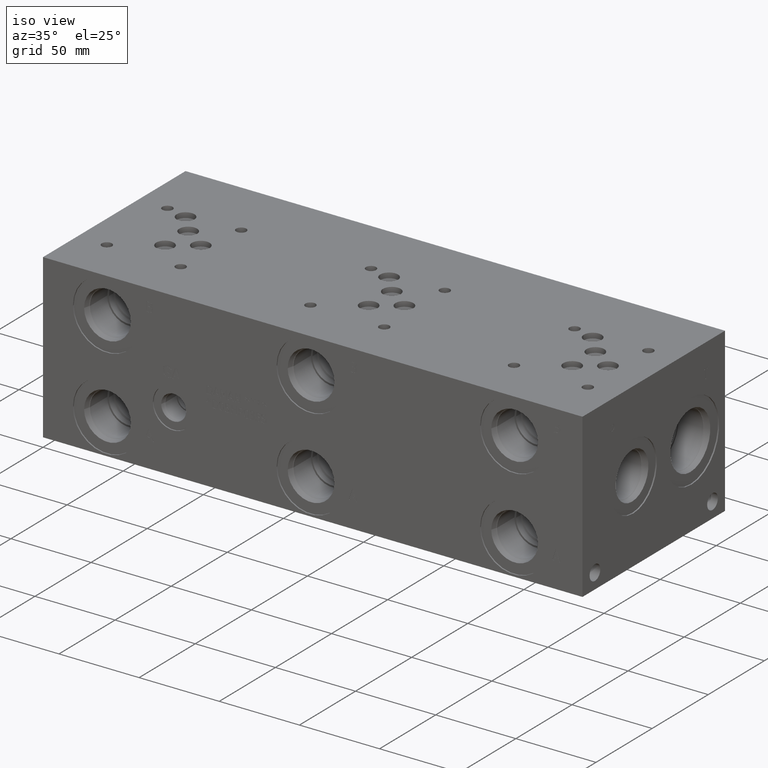
[diagram: clean part render]
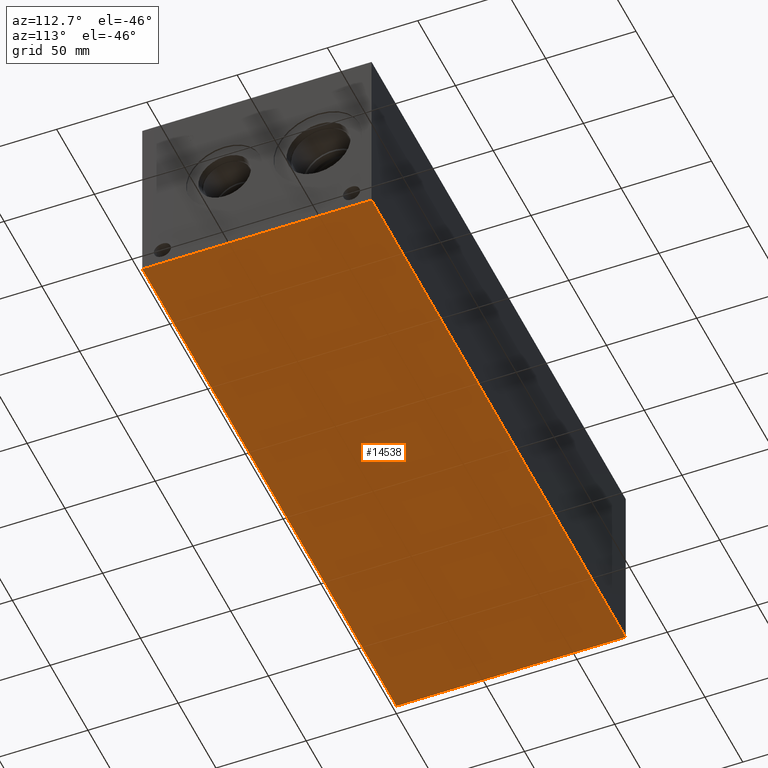
[diagram: tour spotlight — one face highlighted and labeled with its STEP entity id]
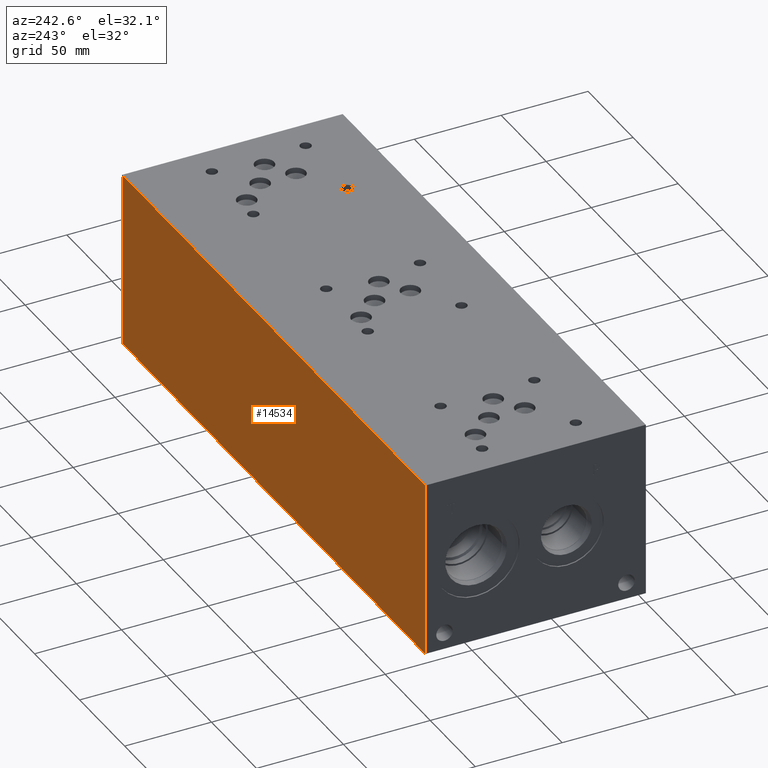
[diagram: tour spotlight — one face highlighted and labeled with its STEP entity id]
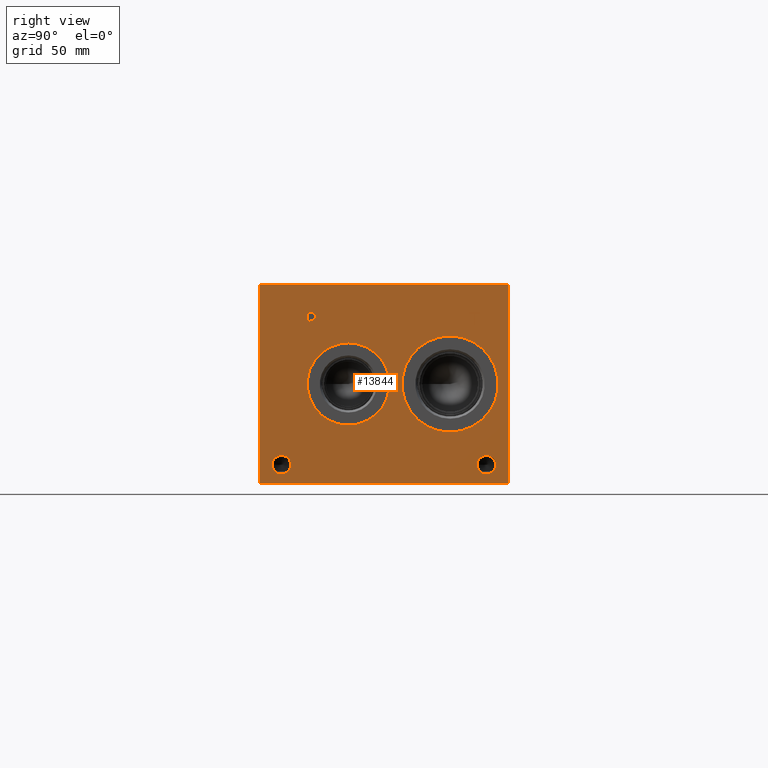
[diagram: tour spotlight — one face highlighted and labeled with its STEP entity id]
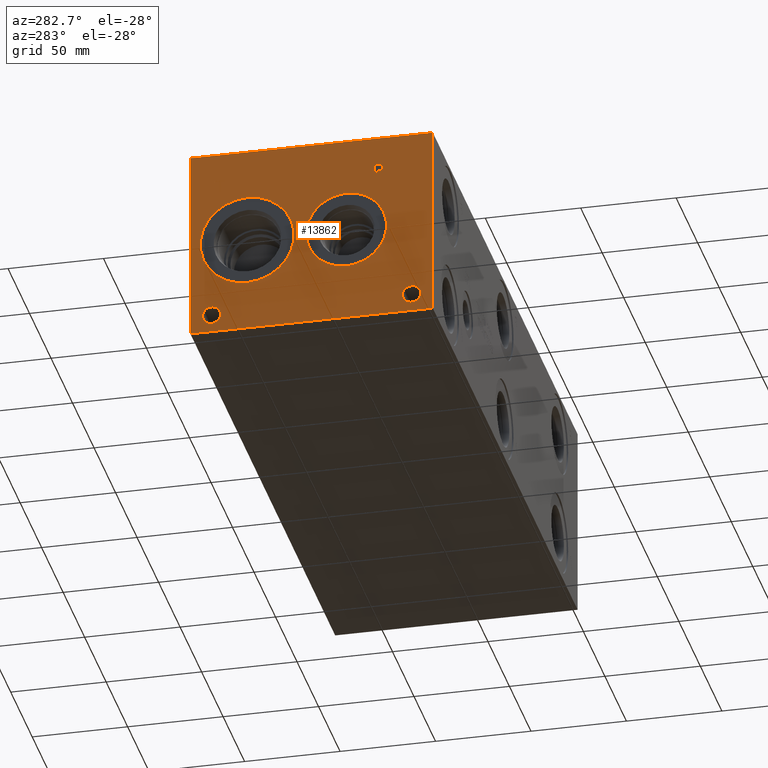
[diagram: tour spotlight — one face highlighted and labeled with its STEP entity id]
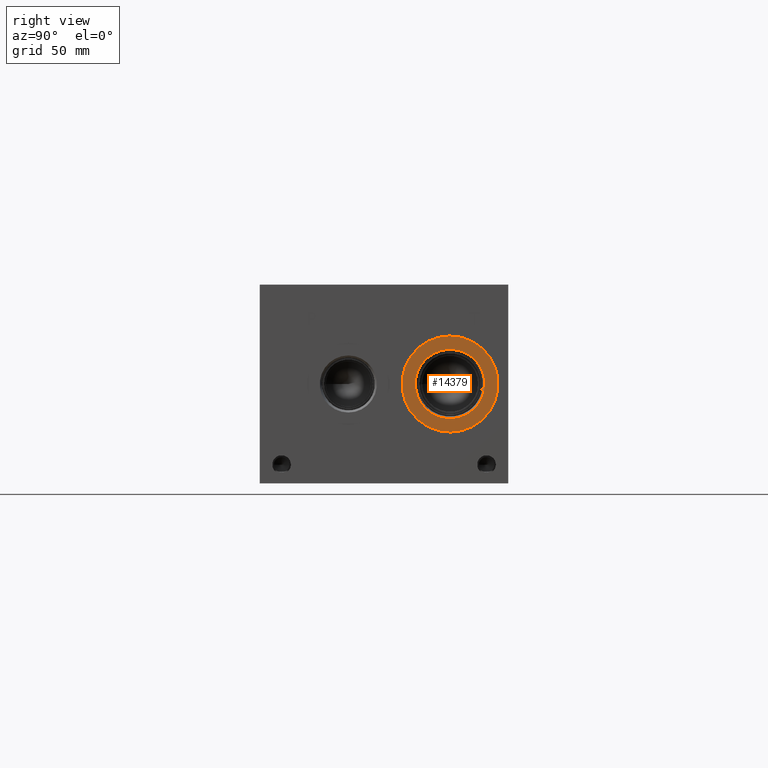
[diagram: tour spotlight — one face highlighted and labeled with its STEP entity id]
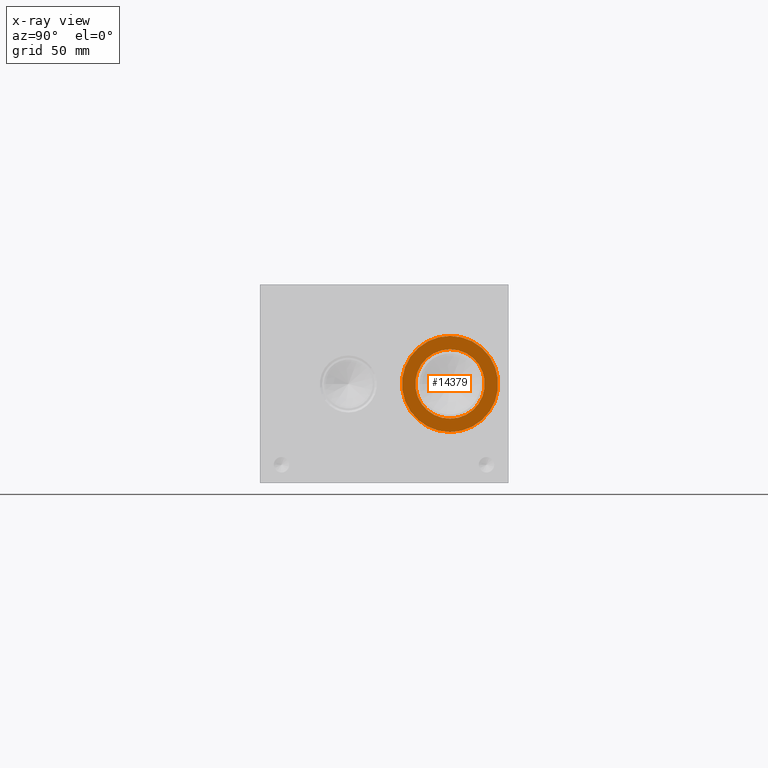
[diagram: x-ray of the same camera — body ghosted, this tour face saturated]
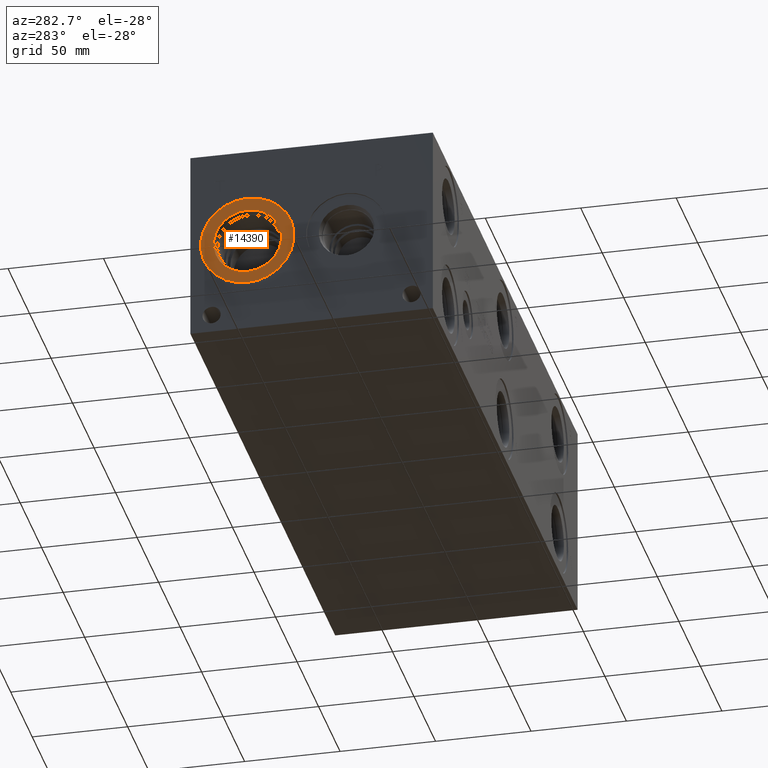
[diagram: tour spotlight — one face highlighted and labeled with its STEP entity id]
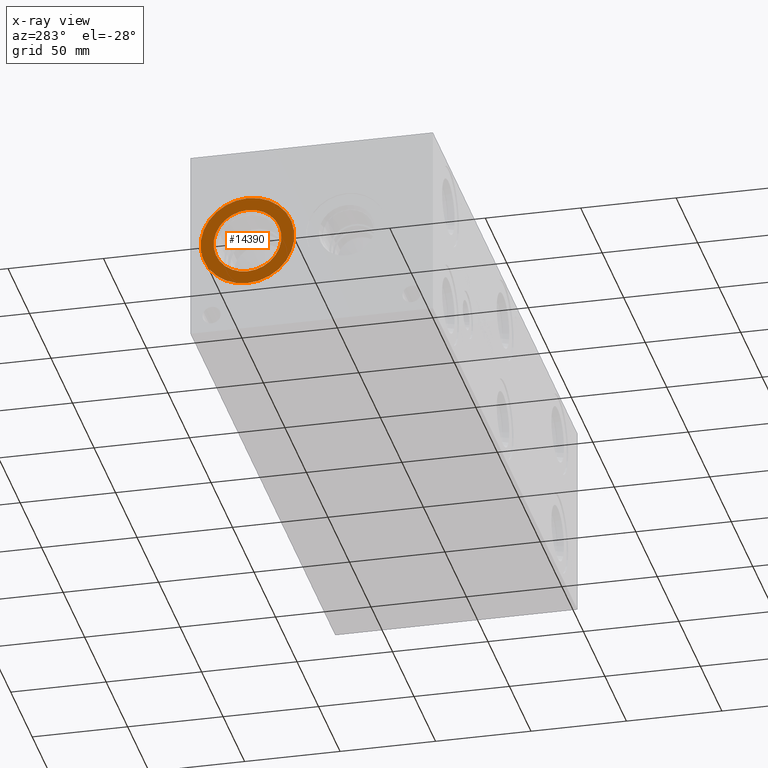
[diagram: x-ray of the same camera — body ghosted, this tour face saturated]
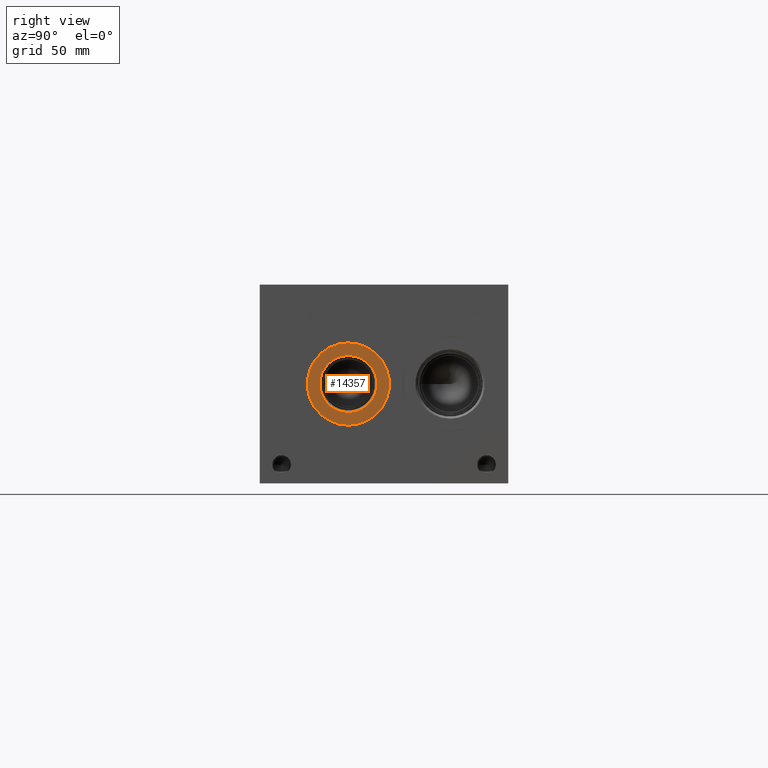
[diagram: tour spotlight — one face highlighted and labeled with its STEP entity id]
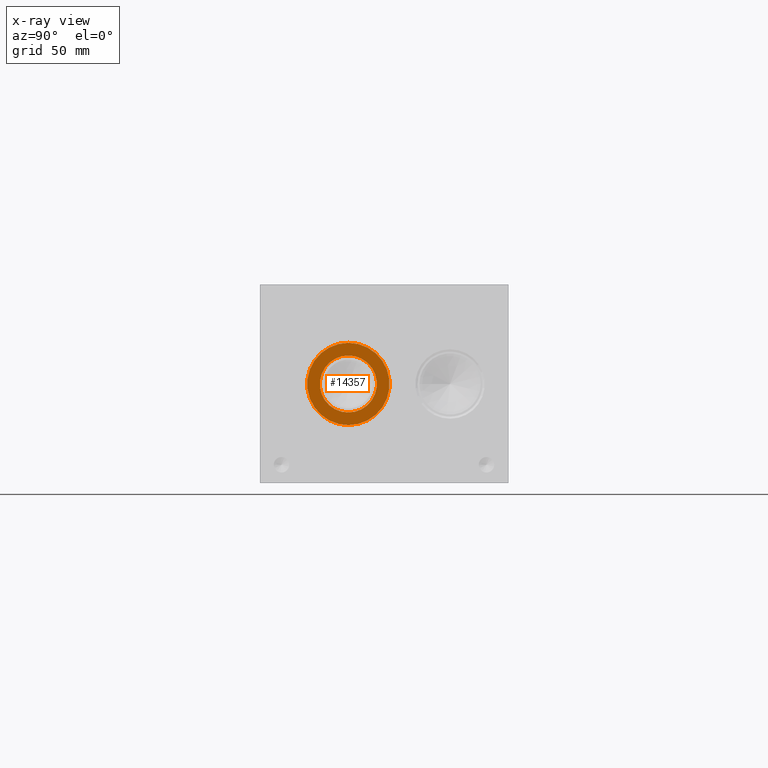
[diagram: x-ray of the same camera — body ghosted, this tour face saturated]
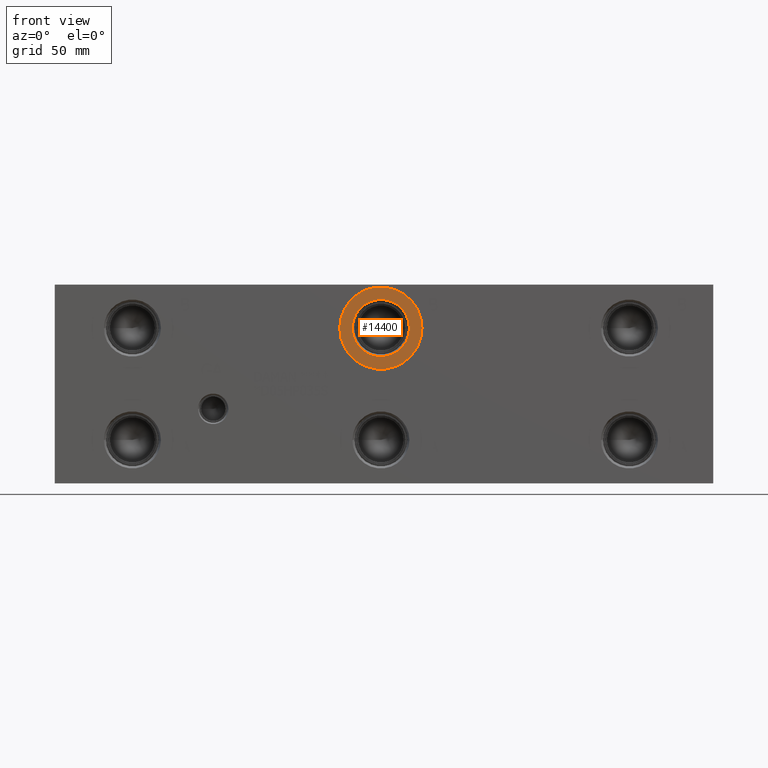
[diagram: tour spotlight — one face highlighted and labeled with its STEP entity id]
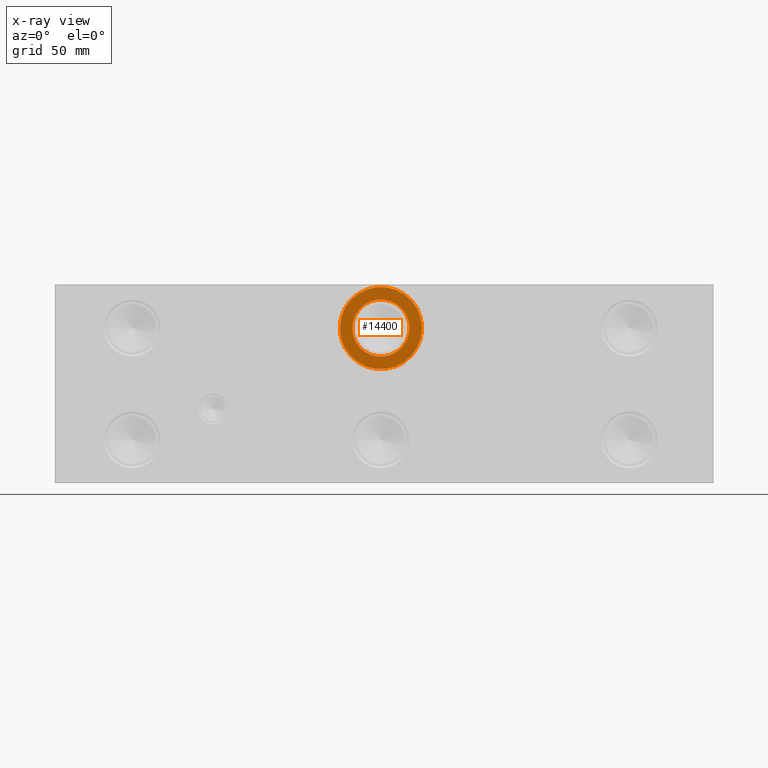
[diagram: x-ray of the same camera — body ghosted, this tour face saturated]
A machine part: a face-by-face anatomy tour. The part has 752 B-rep faces; the first image is the clean iso view, then the 8 largest visible faces are spotlighted one at a time (largest first), each with its STEP entity span.

Face 1 — auxiliary view, entity #14538. In plain terms, the highlighted planar face has unit normal (0, 0, 1).
Definition (entity closure, byte-faithful):
#1979=FACE_OUTER_BOUND('',#2858,.T.);
#2858=EDGE_LOOP('',(#12864,#12865,#12866,#12867));
#2892=LINE('',#18740,#4174);
#3189=LINE('',#20275,#4471);
#3232=LINE('',#20514,#4514);
#4139=LINE('',#25180,#5421);
#4174=VECTOR('',#15558,10.);
#4471=VECTOR('',#15929,10.);
#4514=VECTOR('',#16008,10.);
#5421=VECTOR('',#18659,10.);
#5445=VERTEX_POINT('',#18738);
#5446=VERTEX_POINT('',#18739);
#5867=VERTEX_POINT('',#20274);
#5917=VERTEX_POINT('',#20513);
#6850=EDGE_CURVE('',#5445,#5446,#2892,.T.);
#7312=EDGE_CURVE('',#5446,#5867,#3189,.T.);
#7379=EDGE_CURVE('',#5917,#5445,#3232,.T.);
#8832=EDGE_CURVE('',#5867,#5917,#4139,.T.);
#12864=ORIENTED_EDGE('',*,*,#6850,.F.);
#12865=ORIENTED_EDGE('',*,*,#7379,.F.);
#12866=ORIENTED_EDGE('',*,*,#8832,.F.);
#12867=ORIENTED_EDGE('',*,*,#7312,.F.);
#13267=PLANE('',#15496);
#14538=ADVANCED_FACE('',(#1979),#13267,.F.);
#15496=AXIS2_PLACEMENT_3D('',#25185,#18667,#18668);
#15558=DIRECTION('',(1.,0.,0.));
#15929=DIRECTION('',(0.,1.,0.));
#16008=DIRECTION('',(0.,-1.,0.));
#18659=DIRECTION('',(-1.,0.,0.));
#18667=DIRECTION('center_axis',(0.,0.,1.));
#18668=DIRECTION('ref_axis',(1.,0.,0.));
#18738=CARTESIAN_POINT('',(0.,0.,0.));
#18739=CARTESIAN_POINT('',(336.55,0.,0.));
#18740=CARTESIAN_POINT('',(0.,0.,0.));
#20274=CARTESIAN_POINT('',(336.55,127.,0.));
#20275=CARTESIAN_POINT('',(336.55,0.,0.));
#20513=CARTESIAN_POINT('',(0.,127.,0.));
#20514=CARTESIAN_POINT('',(0.,127.,0.));
#25180=CARTESIAN_POINT('',(336.55,127.,0.));
#25185=CARTESIAN_POINT('Origin',(168.275,63.5,0.));

Face 2 — auxiliary view, entity #14534. In plain terms, the highlighted planar face has unit normal (0, 1, 0).
Definition (entity closure, byte-faithful):
#1975=FACE_OUTER_BOUND('',#2830,.T.);
#2830=EDGE_LOOP('',(#12798,#12799,#12800,#12801));
#3190=LINE('',#20277,#4472);
#3234=LINE('',#20517,#4516);
#4139=LINE('',#25180,#5421);
#4140=LINE('',#25181,#5422);
#4472=VECTOR('',#15930,10.);
#4516=VECTOR('',#16010,10.);
#5421=VECTOR('',#18659,10.);
#5422=VECTOR('',#18660,10.);
#5867=VERTEX_POINT('',#20274);
#5868=VERTEX_POINT('',#20276);
#5917=VERTEX_POINT('',#20513);
#5918=VERTEX_POINT('',#20515);
#7313=EDGE_CURVE('',#5867,#5868,#3190,.T.);
#7381=EDGE_CURVE('',#5917,#5918,#3234,.T.);
#8832=EDGE_CURVE('',#5867,#5917,#4139,.T.);
#8833=EDGE_CURVE('',#5868,#5918,#4140,.T.);
#12798=ORIENTED_EDGE('',*,*,#8832,.T.);
#12799=ORIENTED_EDGE('',*,*,#7381,.T.);
#12800=ORIENTED_EDGE('',*,*,#8833,.F.);
#12801=ORIENTED_EDGE('',*,*,#7313,.F.);
#13263=PLANE('',#15492);
#14534=ADVANCED_FACE('',(#1975),#13263,.T.);
#15492=AXIS2_PLACEMENT_3D('',#25179,#18657,#18658);
#15930=DIRECTION('',(0.,0.,1.));
#16010=DIRECTION('',(0.,0.,1.));
#18657=DIRECTION('center_axis',(0.,1.,0.));
#18658=DIRECTION('ref_axis',(-1.,0.,0.));
#18659=DIRECTION('',(-1.,0.,0.));
#18660=DIRECTION('',(-1.,0.,0.));
#20274=CARTESIAN_POINT('',(336.55,127.,0.));
#20276=CARTESIAN_POINT('',(336.55,127.,101.6));
#20277=CARTESIAN_POINT('',(336.55,127.,0.));
#20513=CARTESIAN_POINT('',(0.,127.,0.));
#20515=CARTESIAN_POINT('',(0.,127.,101.6));
#20517=CARTESIAN_POINT('',(0.,127.,0.));
#25179=CARTESIAN_POINT('Origin',(336.55,127.,0.));
#25180=CARTESIAN_POINT('',(336.55,127.,0.));
#25181=CARTESIAN_POINT('',(336.55,127.,101.6));

Face 3 — right view, entity #13844. In plain terms, the highlighted planar face has unit normal (1, 0, 0).
Definition (entity closure, byte-faithful):
#380=CIRCLE('',#14603,24.5618);
#381=CIRCLE('',#14604,24.5618);
#382=CIRCLE('',#14605,21.0185);
#383=CIRCLE('',#14606,21.0185);
#384=CIRCLE('',#14607,4.7625);
#385=CIRCLE('',#14608,4.7625);
#386=CIRCLE('',#14609,4.7625);
#387=CIRCLE('',#14610,4.7625);
#882=B_SPLINE_CURVE_WITH_KNOTS('',2,(#20176,#20177,#20178,#20179),
 .UNSPECIFIED.,.F.,.F.,(3,1,3),(0.,1.,2.),.UNSPECIFIED.);
#884=B_SPLINE_CURVE_WITH_KNOTS('',2,(#20197,#20198,#20199,#20200),
 .UNSPECIFIED.,.F.,.F.,(3,1,3),(0.,1.,2.),.UNSPECIFIED.);
#886=B_SPLINE_CURVE_WITH_KNOTS('',2,(#20246,#20247,#20248,#20249),
 .UNSPECIFIED.,.F.,.F.,(3,1,3),(0.,1.,2.),.UNSPECIFIED.);
#888=B_SPLINE_CURVE_WITH_KNOTS('',2,(#20264,#20265,#20266,#20267),
 .UNSPECIFIED.,.F.,.F.,(3,1,3),(0.,1.,2.),.UNSPECIFIED.);
#1139=FACE_BOUND('',#2076,.T.);
#1140=FACE_BOUND('',#2077,.T.);
#1141=FACE_BOUND('',#2078,.T.);
#1142=FACE_BOUND('',#2079,.T.);
#1143=FACE_BOUND('',#2080,.T.);
#1144=FACE_BOUND('',#2081,.T.);
#1285=FACE_OUTER_BOUND('',#2075,.T.);
#2075=EDGE_LOOP('',(#9459,#9460,#9461,#9462));
#2076=EDGE_LOOP('',(#9463,#9464));
#2077=EDGE_LOOP('',(#9465,#9466));
#2078=EDGE_LOOP('',(#9467,#9468));
#2079=EDGE_LOOP('',(#9469,#9470));
#2080=EDGE_LOOP('',(#9471,#9472,#9473,#9474,#9475,#9476,#9477,#9478));
#2081=EDGE_LOOP('',(#9479,#9480,#9481,#9482,#9483,#9484,#9485,#9486,#9487));
#2893=LINE('',#18742,#4175);
#3173=LINE('',#20209,#4455);
#3176=LINE('',#20215,#4458);
#3179=LINE('',#20221,#4461);
#3182=LINE('',#20227,#4464);
#3185=LINE('',#20233,#4467);
#3189=LINE('',#20275,#4471);
#3190=LINE('',#20277,#4472);
#3191=LINE('',#20278,#4473);
#3192=LINE('',#20297,#4474);
#3193=LINE('',#20299,#4475);
#3194=LINE('',#20301,#4476);
#3195=LINE('',#20303,#4477);
#3196=LINE('',#20305,#4478);
#3197=LINE('',#20307,#4479);
#3198=LINE('',#20309,#4480);
#3199=LINE('',#20310,#4481);
#4175=VECTOR('',#15559,10.);
#4455=VECTOR('',#15901,10.);
#4458=VECTOR('',#15906,10.);
#4461=VECTOR('',#15911,10.);
#4464=VECTOR('',#15916,10.);
#4467=VECTOR('',#15921,10.);
#4471=VECTOR('',#15929,10.);
#4472=VECTOR('',#15930,10.);
#4473=VECTOR('',#15931,10.);
#4474=VECTOR('',#15948,10.);
#4475=VECTOR('',#15949,10.);
#4476=VECTOR('',#15950,10.);
#4477=VECTOR('',#15951,10.);
#4478=VECTOR('',#15952,10.);
#4479=VECTOR('',#15953,10.);
#4480=VECTOR('',#15954,10.);
#4481=VECTOR('',#15955,10.);
#5446=VERTEX_POINT('',#18739);
#5447=VERTEX_POINT('',#18741);
#5849=VERTEX_POINT('',#20174);
#5850=VERTEX_POINT('',#20175);
#5853=VERTEX_POINT('',#20196);
#5855=VERTEX_POINT('',#20208);
#5857=VERTEX_POINT('',#20214);
#5859=VERTEX_POINT('',#20220);
#5861=VERTEX_POINT('',#20226);
#5863=VERTEX_POINT('',#20232);
#5865=VERTEX_POINT('',#20245);
#5867=VERTEX_POINT('',#20274);
#5868=VERTEX_POINT('',#20276);
#5869=VERTEX_POINT('',#20279);
#5870=VERTEX_POINT('',#20280);
#5871=VERTEX_POINT('',#20283);
#5872=VERTEX_POINT('',#20284);
#5873=VERTEX_POINT('',#20287);
#5874=VERTEX_POINT('',#20288);
#5875=VERTEX_POINT('',#20291);
#5876=VERTEX_POINT('',#20292);
#5877=VERTEX_POINT('',#20295);
#5878=VERTEX_POINT('',#20296);
#5879=VERTEX_POINT('',#20298);
#5880=VERTEX_POINT('',#20300);
#5881=VERTEX_POINT('',#20302);
#5882=VERTEX_POINT('',#20304);
#5883=VERTEX_POINT('',#20306);
#5884=VERTEX_POINT('',#20308);
#6851=EDGE_CURVE('',#5446,#5447,#2893,.T.);
#7285=EDGE_CURVE('',#5849,#5850,#882,.T.);
#7289=EDGE_CURVE('',#5853,#5849,#884,.T.);
#7292=EDGE_CURVE('',#5855,#5853,#3173,.T.);
#7295=EDGE_CURVE('',#5857,#5855,#3176,.T.);
#7298=EDGE_CURVE('',#5859,#5857,#3179,.T.);
#7301=EDGE_CURVE('',#5861,#5859,#3182,.T.);
#7304=EDGE_CURVE('',#5863,#5861,#3185,.T.);
#7307=EDGE_CURVE('',#5865,#5863,#886,.T.);
#7310=EDGE_CURVE('',#5850,#5865,#888,.T.);
#7312=EDGE_CURVE('',#5446,#5867,#3189,.T.);
#7313=EDGE_CURVE('',#5867,#5868,#3190,.T.);
#7314=EDGE_CURVE('',#5447,#5868,#3191,.T.);
#7315=EDGE_CURVE('',#5869,#5870,#380,.T.);
#7316=EDGE_CURVE('',#5870,#5869,#381,.T.);
#7317=EDGE_CURVE('',#5871,#5872,#382,.T.);
#7318=EDGE_CURVE('',#5872,#5871,#383,.T.);
#7319=EDGE_CURVE('',#5873,#5874,#384,.T.);
#7320=EDGE_CURVE('',#5874,#5873,#385,.T.);
#7321=EDGE_CURVE('',#5875,#5876,#386,.T.);
#7322=EDGE_CURVE('',#5876,#5875,#387,.T.);
#7323=EDGE_CURVE('',#5877,#5878,#3192,.T.);
#7324=EDGE_CURVE('',#5878,#5879,#3193,.T.);
#7325=EDGE_CURVE('',#5879,#5880,#3194,.T.);
#7326=EDGE_CURVE('',#5880,#5881,#3195,.T.);
#7327=EDGE_CURVE('',#5881,#5882,#3196,.T.);
#7328=EDGE_CURVE('',#5882,#5883,#3197,.T.);
#7329=EDGE_CURVE('',#5883,#5884,#3198,.T.);
#7330=EDGE_CURVE('',#5884,#5877,#3199,.T.);
#9459=ORIENTED_EDGE('',*,*,#7312,.T.);
#9460=ORIENTED_EDGE('',*,*,#7313,.T.);
#9461=ORIENTED_EDGE('',*,*,#7314,.F.);
#9462=ORIENTED_EDGE('',*,*,#6851,.F.);
#9463=ORIENTED_EDGE('',*,*,#7315,.T.);
#9464=ORIENTED_EDGE('',*,*,#7316,.T.);
#9465=ORIENTED_EDGE('',*,*,#7317,.T.);
#9466=ORIENTED_EDGE('',*,*,#7318,.T.);
#9467=ORIENTED_EDGE('',*,*,#7319,.T.);
#9468=ORIENTED_EDGE('',*,*,#7320,.T.);
#9469=ORIENTED_EDGE('',*,*,#7321,.T.);
#9470=ORIENTED_EDGE('',*,*,#7322,.T.);
#9471=ORIENTED_EDGE('',*,*,#7323,.T.);
#9472=ORIENTED_EDGE('',*,*,#7324,.T.);
#9473=ORIENTED_EDGE('',*,*,#7325,.T.);
#9474=ORIENTED_EDGE('',*,*,#7326,.T.);
#9475=ORIENTED_EDGE('',*,*,#7327,.T.);
#9476=ORIENTED_EDGE('',*,*,#7328,.T.);
#9477=ORIENTED_EDGE('',*,*,#7329,.T.);
#9478=ORIENTED_EDGE('',*,*,#7330,.T.);
#9479=ORIENTED_EDGE('',*,*,#7285,.T.);
#9480=ORIENTED_EDGE('',*,*,#7310,.T.);
#9481=ORIENTED_EDGE('',*,*,#7307,.T.);
#9482=ORIENTED_EDGE('',*,*,#7304,.T.);
#9483=ORIENTED_EDGE('',*,*,#7301,.T.);
#9484=ORIENTED_EDGE('',*,*,#7298,.T.);
#9485=ORIENTED_EDGE('',*,*,#7295,.T.);
#9486=ORIENTED_EDGE('',*,*,#7292,.T.);
#9487=ORIENTED_EDGE('',*,*,#7289,.T.);
#12903=PLANE('',#14602);
#13844=ADVANCED_FACE('',(#1285,#1139,#1140,#1141,#1142,#1143,#1144),#12903,
 .T.);
#14602=AXIS2_PLACEMENT_3D('',#20273,#15927,#15928);
#14603=AXIS2_PLACEMENT_3D('',#20281,#15932,#15933);
#14604=AXIS2_PLACEMENT_3D('',#20282,#15934,#15935);
#14605=AXIS2_PLACEMENT_3D('',#20285,#15936,#15937);
#14606=AXIS2_PLACEMENT_3D('',#20286,#15938,#15939);
#14607=AXIS2_PLACEMENT_3D('',#20289,#15940,#15941);
#14608=AXIS2_PLACEMENT_3D('',#20290,#15942,#15943);
#14609=AXIS2_PLACEMENT_3D('',#20293,#15944,#15945);
#14610=AXIS2_PLACEMENT_3D('',#20294,#15946,#15947);
#15559=DIRECTION('',(0.,0.,1.));
#15901=DIRECTION('',(0.,1.,0.));
#15906=DIRECTION('',(0.,0.,1.));
#15911=DIRECTION('',(0.,-1.,0.));
#15916=DIRECTION('',(0.,0.,-1.));
#15921=DIRECTION('',(0.,-1.,0.));
#15927=DIRECTION('center_axis',(1.,0.,0.));
#15928=DIRECTION('ref_axis',(0.,1.,0.));
#15929=DIRECTION('',(0.,1.,0.));
#15930=DIRECTION('',(0.,0.,1.));
#15931=DIRECTION('',(0.,1.,0.));
#15932=DIRECTION('center_axis',(-1.,0.,0.));
#15933=DIRECTION('ref_axis',(0.,0.,-1.));
#15934=DIRECTION('center_axis',(-1.,0.,0.));
#15935=DIRECTION('ref_axis',(0.,0.,-1.));
#15936=DIRECTION('center_axis',(-1.,0.,0.));
#15937=DIRECTION('ref_axis',(0.,0.,-1.));
#15938=DIRECTION('center_axis',(-1.,0.,0.));
#15939=DIRECTION('ref_axis',(0.,0.,-1.));
#15940=DIRECTION('center_axis',(-1.,0.,0.));
#15941=DIRECTION('ref_axis',(0.,1.,0.));
#15942=DIRECTION('center_axis',(-1.,0.,0.));
#15943=DIRECTION('ref_axis',(0.,1.,0.));
#15944=DIRECTION('center_axis',(-1.,0.,0.));
#15945=DIRECTION('ref_axis',(0.,1.,0.));
#15946=DIRECTION('center_axis',(-1.,0.,0.));
#15947=DIRECTION('ref_axis',(0.,1.,0.));
#15948=DIRECTION('',(0.,-1.,0.));
#15949=DIRECTION('',(0.,0.,1.));
#15950=DIRECTION('',(0.,-1.,0.));
#15951=DIRECTION('',(0.,0.,1.));
#15952=DIRECTION('',(0.,1.,0.));
#15953=DIRECTION('',(0.,0.,-1.));
#15954=DIRECTION('',(0.,-1.,0.));
#15955=DIRECTION('',(0.,0.,-1.));
#18739=CARTESIAN_POINT('',(336.55,0.,0.));
#18741=CARTESIAN_POINT('',(336.55,0.,101.6));
#18742=CARTESIAN_POINT('',(336.55,0.,0.));
#20174=CARTESIAN_POINT('',(336.55,27.8083172023594,86.9162681439707));
#20175=CARTESIAN_POINT('',(336.55,28.564759654532,85.398237372604));
#20176=CARTESIAN_POINT('Ctrl Pts',(336.55,27.8083172023594,86.9162681439707));
#20177=CARTESIAN_POINT('Ctrl Pts',(336.55,28.1633820268486,86.6744123939564));
#20178=CARTESIAN_POINT('Ctrl Pts',(336.55,28.564759654532,85.9282616758269));
#20179=CARTESIAN_POINT('Ctrl Pts',(336.55,28.564759654532,85.398237372604));
#20196=CARTESIAN_POINT('',(336.55,26.1462021543883,87.3124999046326));
#20197=CARTESIAN_POINT('Ctrl Pts',(336.55,26.1462021543883,87.3124999046326));
#20198=CARTESIAN_POINT('Ctrl Pts',(336.55,26.7122475267624,87.3124999046326));
#20199=CARTESIAN_POINT('Ctrl Pts',(336.55,27.504711048086,87.1272486918556));
#20200=CARTESIAN_POINT('Ctrl Pts',(336.55,27.8083172023594,86.9162681439707));
#20208=CARTESIAN_POINT('',(336.55,24.5509833776978,87.3124999046326));
#20209=CARTESIAN_POINT('',(336.55,12.2754916888489,87.3124999046326));
#20214=CARTESIAN_POINT('',(336.55,24.5509833776978,80.9625));
#20215=CARTESIAN_POINT('',(336.55,24.5509833776978,40.48125));
#20220=CARTESIAN_POINT('',(336.55,25.3949055692373,80.9625));
#20221=CARTESIAN_POINT('',(336.55,12.6974527846186,80.9625));
#20226=CARTESIAN_POINT('',(336.55,25.3949055692373,83.3295988299279));
#20227=CARTESIAN_POINT('',(336.55,25.3949055692373,41.6647994149639));
#20232=CARTESIAN_POINT('',(336.55,26.1101810852372,83.3295988299279));
#20233=CARTESIAN_POINT('',(336.55,13.0550905426186,83.3295988299279));
#20245=CARTESIAN_POINT('',(336.55,28.0090060162011,83.9882698086904));
#20246=CARTESIAN_POINT('Ctrl Pts',(336.55,28.0090060162011,83.9882698086904));
#20247=CARTESIAN_POINT('Ctrl Pts',(336.55,27.6796705268198,83.6640801863307));
#20248=CARTESIAN_POINT('Ctrl Pts',(336.55,26.7894355320861,83.3295988299279));
#20249=CARTESIAN_POINT('Ctrl Pts',(336.55,26.1101810852372,83.3295988299279));
#20264=CARTESIAN_POINT('Ctrl Pts',(336.55,28.564759654532,85.398237372604));
#20265=CARTESIAN_POINT('Ctrl Pts',(336.55,28.564759654532,84.9865680108774));
#20266=CARTESIAN_POINT('Ctrl Pts',(336.55,28.2714452343018,84.2455631597695));
#20267=CARTESIAN_POINT('Ctrl Pts',(336.55,28.0090060162011,83.9882698086904));
#20273=CARTESIAN_POINT('Origin',(336.55,0.,0.));
#20274=CARTESIAN_POINT('',(336.55,127.,0.));
#20275=CARTESIAN_POINT('',(336.55,0.,0.));
#20276=CARTESIAN_POINT('',(336.55,127.,101.6));
#20277=CARTESIAN_POINT('',(336.55,127.,0.));
#20278=CARTESIAN_POINT('',(336.55,0.,101.6));
#20279=CARTESIAN_POINT('',(336.55,97.2566,26.2382));
#20280=CARTESIAN_POINT('',(336.55,97.2566,75.3618));
#20281=CARTESIAN_POINT('Origin',(336.55,97.2566,50.8));
#20282=CARTESIAN_POINT('Origin',(336.55,97.2566,50.8));
#20283=CARTESIAN_POINT('',(336.55,45.2882,29.7815));
#20284=CARTESIAN_POINT('',(336.55,45.2882,71.8185));
#20285=CARTESIAN_POINT('Origin',(336.55,45.2882,50.8));
#20286=CARTESIAN_POINT('Origin',(336.55,45.2882,50.8));
#20287=CARTESIAN_POINT('',(336.55,15.8877,9.525));
#20288=CARTESIAN_POINT('',(336.55,6.3627,9.525));
#20289=CARTESIAN_POINT('Origin',(336.55,11.1252,9.525));
#20290=CARTESIAN_POINT('Origin',(336.55,11.1252,9.525));
#20291=CARTESIAN_POINT('',(336.55,120.6373,9.525));
#20292=CARTESIAN_POINT('',(336.55,111.1123,9.525));
#20293=CARTESIAN_POINT('Origin',(336.55,115.8748,9.525));
#20294=CARTESIAN_POINT('Origin',(336.55,115.8748,9.525));
#20295=CARTESIAN_POINT('',(336.55,110.125415271453,80.9625));
#20296=CARTESIAN_POINT('',(336.55,109.281493079914,80.9625));
#20297=CARTESIAN_POINT('',(336.55,55.0627076357265,80.9625));
#20298=CARTESIAN_POINT('',(336.55,109.281493079914,86.5612033194816));
#20299=CARTESIAN_POINT('',(336.55,109.281493079914,40.48125));
#20300=CARTESIAN_POINT('',(336.55,107.151104132978,86.5612033194816));
#20301=CARTESIAN_POINT('',(336.55,54.6407465399568,86.5612033194816));
#20302=CARTESIAN_POINT('',(336.55,107.151104132978,87.3124999046326));
#20303=CARTESIAN_POINT('',(336.55,107.151104132978,43.2806016597408));
#20304=CARTESIAN_POINT('',(336.55,112.255804218388,87.3124999046326));
#20305=CARTESIAN_POINT('',(336.55,53.5755520664892,87.3124999046326));
#20306=CARTESIAN_POINT('',(336.55,112.255804218388,86.5612033194816));
#20307=CARTESIAN_POINT('',(336.55,112.255804218388,43.6562499523163));
#20308=CARTESIAN_POINT('',(336.55,110.125415271453,86.5612033194816));
#20309=CARTESIAN_POINT('',(336.55,56.127902109194,86.5612033194816));
#20310=CARTESIAN_POINT('',(336.55,110.125415271453,43.2806016597408));

Face 4 — auxiliary view, entity #13862. In plain terms, the highlighted planar face has unit normal (-1, 0, 0).
Definition (entity closure, byte-faithful):
#388=CIRCLE('',#14621,24.5618);
#389=CIRCLE('',#14622,24.5618);
#390=CIRCLE('',#14623,21.0185);
#391=CIRCLE('',#14624,21.0185);
#392=CIRCLE('',#14625,4.7625);
#393=CIRCLE('',#14626,4.7625);
#394=CIRCLE('',#14627,4.7625);
#395=CIRCLE('',#14628,4.7625);
#898=B_SPLINE_CURVE_WITH_KNOTS('',2,(#20415,#20416,#20417,#20418),
 .UNSPECIFIED.,.F.,.F.,(3,1,3),(0.,1.,2.),.UNSPECIFIED.);
#900=B_SPLINE_CURVE_WITH_KNOTS('',2,(#20436,#20437,#20438,#20439),
 .UNSPECIFIED.,.F.,.F.,(3,1,3),(0.,1.,2.),.UNSPECIFIED.);
#902=B_SPLINE_CURVE_WITH_KNOTS('',2,(#20485,#20486,#20487,#20488),
 .UNSPECIFIED.,.F.,.F.,(3,1,3),(0.,1.,2.),.UNSPECIFIED.);
#904=B_SPLINE_CURVE_WITH_KNOTS('',2,(#20503,#20504,#20505,#20506),
 .UNSPECIFIED.,.F.,.F.,(3,1,3),(0.,1.,2.),.UNSPECIFIED.);
#1146=FACE_BOUND('',#2101,.T.);
#1147=FACE_BOUND('',#2102,.T.);
#1148=FACE_BOUND('',#2103,.T.);
#1149=FACE_BOUND('',#2104,.T.);
#1150=FACE_BOUND('',#2105,.T.);
#1151=FACE_BOUND('',#2106,.T.);
#1303=FACE_OUTER_BOUND('',#2100,.T.);
#2100=EDGE_LOOP('',(#9568,#9569,#9570,#9571));
#2101=EDGE_LOOP('',(#9572,#9573));
#2102=EDGE_LOOP('',(#9574,#9575));
#2103=EDGE_LOOP('',(#9576,#9577));
#2104=EDGE_LOOP('',(#9578,#9579));
#2105=EDGE_LOOP('',(#9580,#9581,#9582,#9583,#9584,#9585,#9586,#9587));
#2106=EDGE_LOOP('',(#9588,#9589,#9590,#9591,#9592,#9593,#9594,#9595,#9596));
#2895=LINE('',#18745,#4177);
#3216=LINE('',#20448,#4498);
#3219=LINE('',#20454,#4501);
#3222=LINE('',#20460,#4504);
#3225=LINE('',#20466,#4507);
#3228=LINE('',#20472,#4510);
#3232=LINE('',#20514,#4514);
#3233=LINE('',#20516,#4515);
#3234=LINE('',#20517,#4516);
#3235=LINE('',#20536,#4517);
#3236=LINE('',#20538,#4518);
#3237=LINE('',#20540,#4519);
#3238=LINE('',#20542,#4520);
#3239=LINE('',#20544,#4521);
#3240=LINE('',#20546,#4522);
#3241=LINE('',#20548,#4523);
#3242=LINE('',#20549,#4524);
#4177=VECTOR('',#15561,10.);
#4498=VECTOR('',#15980,10.);
#4501=VECTOR('',#15985,10.);
#4504=VECTOR('',#15990,10.);
#4507=VECTOR('',#15995,10.);
#4510=VECTOR('',#16000,10.);
#4514=VECTOR('',#16008,10.);
#4515=VECTOR('',#16009,10.);
#4516=VECTOR('',#16010,10.);
#4517=VECTOR('',#16027,10.);
#4518=VECTOR('',#16028,10.);
#4519=VECTOR('',#16029,10.);
#4520=VECTOR('',#16030,10.);
#4521=VECTOR('',#16031,10.);
#4522=VECTOR('',#16032,10.);
#4523=VECTOR('',#16033,10.);
#4524=VECTOR('',#16034,10.);
#5445=VERTEX_POINT('',#18738);
#5448=VERTEX_POINT('',#18743);
#5899=VERTEX_POINT('',#20413);
#5900=VERTEX_POINT('',#20414);
#5903=VERTEX_POINT('',#20435);
#5905=VERTEX_POINT('',#20447);
#5907=VERTEX_POINT('',#20453);
#5909=VERTEX_POINT('',#20459);
#5911=VERTEX_POINT('',#20465);
#5913=VERTEX_POINT('',#20471);
#5915=VERTEX_POINT('',#20484);
#5917=VERTEX_POINT('',#20513);
#5918=VERTEX_POINT('',#20515);
#5919=VERTEX_POINT('',#20518);
#5920=VERTEX_POINT('',#20519);
#5921=VERTEX_POINT('',#20522);
#5922=VERTEX_POINT('',#20523);
#5923=VERTEX_POINT('',#20526);
#5924=VERTEX_POINT('',#20527);
#5925=VERTEX_POINT('',#20530);
#5926=VERTEX_POINT('',#20531);
#5927=VERTEX_POINT('',#20534);
#5928=VERTEX_POINT('',#20535);
#5929=VERTEX_POINT('',#20537);
#5930=VERTEX_POINT('',#20539);
#5931=VERTEX_POINT('',#20541);
#5932=VERTEX_POINT('',#20543);
#5933=VERTEX_POINT('',#20545);
#5934=VERTEX_POINT('',#20547);
#6853=EDGE_CURVE('',#5445,#5448,#2895,.T.);
#7352=EDGE_CURVE('',#5899,#5900,#898,.T.);
#7356=EDGE_CURVE('',#5903,#5899,#900,.T.);
#7359=EDGE_CURVE('',#5905,#5903,#3216,.T.);
#7362=EDGE_CURVE('',#5907,#5905,#3219,.T.);
#7365=EDGE_CURVE('',#5909,#5907,#3222,.T.);
#7368=EDGE_CURVE('',#5911,#5909,#3225,.T.);
#7371=EDGE_CURVE('',#5913,#5911,#3228,.T.);
#7374=EDGE_CURVE('',#5915,#5913,#902,.T.);
#7377=EDGE_CURVE('',#5900,#5915,#904,.T.);
#7379=EDGE_CURVE('',#5917,#5445,#3232,.T.);
#7380=EDGE_CURVE('',#5918,#5448,#3233,.T.);
#7381=EDGE_CURVE('',#5917,#5918,#3234,.T.);
#7382=EDGE_CURVE('',#5919,#5920,#388,.T.);
#7383=EDGE_CURVE('',#5920,#5919,#389,.T.);
#7384=EDGE_CURVE('',#5921,#5922,#390,.T.);
#7385=EDGE_CURVE('',#5922,#5921,#391,.T.);
#7386=EDGE_CURVE('',#5923,#5924,#392,.T.);
#7387=EDGE_CURVE('',#5924,#5923,#393,.T.);
#7388=EDGE_CURVE('',#5925,#5926,#394,.T.);
#7389=EDGE_CURVE('',#5926,#5925,#395,.T.);
#7390=EDGE_CURVE('',#5927,#5928,#3235,.T.);
#7391=EDGE_CURVE('',#5928,#5929,#3236,.T.);
#7392=EDGE_CURVE('',#5929,#5930,#3237,.T.);
#7393=EDGE_CURVE('',#5930,#5931,#3238,.T.);
#7394=EDGE_CURVE('',#5931,#5932,#3239,.T.);
#7395=EDGE_CURVE('',#5932,#5933,#3240,.T.);
#7396=EDGE_CURVE('',#5933,#5934,#3241,.T.);
#7397=EDGE_CURVE('',#5934,#5927,#3242,.T.);
#9568=ORIENTED_EDGE('',*,*,#7379,.T.);
#9569=ORIENTED_EDGE('',*,*,#6853,.T.);
#9570=ORIENTED_EDGE('',*,*,#7380,.F.);
#9571=ORIENTED_EDGE('',*,*,#7381,.F.);
#9572=ORIENTED_EDGE('',*,*,#7382,.T.);
#9573=ORIENTED_EDGE('',*,*,#7383,.T.);
#9574=ORIENTED_EDGE('',*,*,#7384,.T.);
#9575=ORIENTED_EDGE('',*,*,#7385,.T.);
#9576=ORIENTED_EDGE('',*,*,#7386,.T.);
#9577=ORIENTED_EDGE('',*,*,#7387,.T.);
#9578=ORIENTED_EDGE('',*,*,#7388,.T.);
#9579=ORIENTED_EDGE('',*,*,#7389,.T.);
#9580=ORIENTED_EDGE('',*,*,#7390,.T.);
#9581=ORIENTED_EDGE('',*,*,#7391,.T.);
#9582=ORIENTED_EDGE('',*,*,#7392,.T.);
#9583=ORIENTED_EDGE('',*,*,#7393,.T.);
#9584=ORIENTED_EDGE('',*,*,#7394,.T.);
#9585=ORIENTED_EDGE('',*,*,#7395,.T.);
#9586=ORIENTED_EDGE('',*,*,#7396,.T.);
#9587=ORIENTED_EDGE('',*,*,#7397,.T.);
#9588=ORIENTED_EDGE('',*,*,#7352,.T.);
#9589=ORIENTED_EDGE('',*,*,#7377,.T.);
#9590=ORIENTED_EDGE('',*,*,#7374,.T.);
#9591=ORIENTED_EDGE('',*,*,#7371,.T.);
#9592=ORIENTED_EDGE('',*,*,#7368,.T.);
#9593=ORIENTED_EDGE('',*,*,#7365,.T.);
#9594=ORIENTED_EDGE('',*,*,#7362,.T.);
#9595=ORIENTED_EDGE('',*,*,#7359,.T.);
#9596=ORIENTED_EDGE('',*,*,#7356,.T.);
#12913=PLANE('',#14620);
#13862=ADVANCED_FACE('',(#1303,#1146,#1147,#1148,#1149,#1150,#1151),#12913,
 .T.);
#14620=AXIS2_PLACEMENT_3D('',#20512,#16006,#16007);
#14621=AXIS2_PLACEMENT_3D('',#20520,#16011,#16012);
#14622=AXIS2_PLACEMENT_3D('',#20521,#16013,#16014);
#14623=AXIS2_PLACEMENT_3D('',#20524,#16015,#16016);
#14624=AXIS2_PLACEMENT_3D('',#20525,#16017,#16018);
#14625=AXIS2_PLACEMENT_3D('',#20528,#16019,#16020);
#14626=AXIS2_PLACEMENT_3D('',#20529,#16021,#16022);
#14627=AXIS2_PLACEMENT_3D('',#20532,#16023,#16024);
#14628=AXIS2_PLACEMENT_3D('',#20533,#16025,#16026);
#15561=DIRECTION('',(0.,0.,1.));
#15980=DIRECTION('',(0.,-1.,-1.11355060845355E-14));
#15985=DIRECTION('',(0.,-2.79741238752512E-15,1.));
#15990=DIRECTION('',(0.,1.,2.10488224768659E-14));
#15995=DIRECTION('',(0.,1.876090699025E-15,-1.));
#16000=DIRECTION('',(0.,1.,0.));
#16006=DIRECTION('center_axis',(-1.,0.,0.));
#16007=DIRECTION('ref_axis',(0.,-1.,0.));
#16008=DIRECTION('',(0.,-1.,0.));
#16009=DIRECTION('',(0.,-1.,0.));
#16010=DIRECTION('',(0.,0.,1.));
#16011=DIRECTION('center_axis',(1.,0.,0.));
#16012=DIRECTION('ref_axis',(0.,0.,1.));
#16013=DIRECTION('center_axis',(1.,0.,0.));
#16014=DIRECTION('ref_axis',(0.,0.,1.));
#16015=DIRECTION('center_axis',(1.,0.,0.));
#16016=DIRECTION('ref_axis',(0.,0.,1.));
#16017=DIRECTION('center_axis',(1.,0.,0.));
#16018=DIRECTION('ref_axis',(0.,0.,1.));
#16019=DIRECTION('center_axis',(1.,0.,0.));
#16020=DIRECTION('ref_axis',(0.,1.,0.));
#16021=DIRECTION('center_axis',(1.,0.,0.));
#16022=DIRECTION('ref_axis',(0.,1.,0.));
#16023=DIRECTION('center_axis',(1.,0.,0.));
#16024=DIRECTION('ref_axis',(0.,1.,0.));
#16025=DIRECTION('center_axis',(1.,0.,0.));
#16026=DIRECTION('ref_axis',(0.,1.,0.));
#16027=DIRECTION('',(0.,1.,0.));
#16028=DIRECTION('',(0.,-3.17280044688052E-15,1.));
#16029=DIRECTION('',(0.,1.,8.33818088455555E-15));
#16030=DIRECTION('',(0.,0.,1.));
#16031=DIRECTION('',(0.,-1.,0.));
#16032=DIRECTION('',(0.,0.,-1.));
#16033=DIRECTION('',(0.,1.,0.));
#16034=DIRECTION('',(0.,3.17280044688052E-15,-1.));
#18738=CARTESIAN_POINT('',(0.,0.,0.));
#18743=CARTESIAN_POINT('',(0.,0.,101.6));
#18745=CARTESIAN_POINT('',(0.,0.,0.));
#20413=CARTESIAN_POINT('',(0.,27.1636327976406,86.2177681439707));
#20414=CARTESIAN_POINT('',(0.,26.407190345468,84.699737372604));
#20415=CARTESIAN_POINT('Ctrl Pts',(0.,27.1636327976406,86.2177681439707));
#20416=CARTESIAN_POINT('Ctrl Pts',(0.,26.8085679731514,85.9759123939564));
#20417=CARTESIAN_POINT('Ctrl Pts',(0.,26.407190345468,85.2297616758269));
#20418=CARTESIAN_POINT('Ctrl Pts',(0.,26.407190345468,84.699737372604));
#20435=CARTESIAN_POINT('',(0.,28.8257478456117,86.6139999046326));
#20436=CARTESIAN_POINT('Ctrl Pts',(0.,28.8257478456117,86.6139999046326));
#20437=CARTESIAN_POINT('Ctrl Pts',(0.,28.2597024732376,86.6139999046326));
#20438=CARTESIAN_POINT('Ctrl Pts',(0.,27.4672389519139,86.4287486918556));
#20439=CARTESIAN_POINT('Ctrl Pts',(0.,27.1636327976406,86.2177681439707));
#20447=CARTESIAN_POINT('',(0.,30.4209666223022,86.6139999046326));
#20448=CARTESIAN_POINT('',(0.,78.7104833111506,86.6139999046331));
#20453=CARTESIAN_POINT('',(0.,30.4209666223022,80.264));
#20454=CARTESIAN_POINT('',(0.,30.4209666223023,40.1319999999999));
#20459=CARTESIAN_POINT('',(0.,29.5770444307627,80.264));
#20460=CARTESIAN_POINT('',(0.,78.2885222153805,80.264000000001));
#20465=CARTESIAN_POINT('',(0.,29.5770444307627,82.6310988299279));
#20466=CARTESIAN_POINT('',(0.,29.5770444307628,41.3155494149638));
#20471=CARTESIAN_POINT('',(0.,28.8617689147628,82.6310988299279));
#20472=CARTESIAN_POINT('',(0.,77.9308844573814,82.6310988299279));
#20484=CARTESIAN_POINT('',(0.,26.9629439837989,83.2897698086904));
#20485=CARTESIAN_POINT('Ctrl Pts',(0.,26.9629439837989,83.2897698086904));
#20486=CARTESIAN_POINT('Ctrl Pts',(0.,27.2922794731802,82.9655801863307));
#20487=CARTESIAN_POINT('Ctrl Pts',(0.,28.1825144679139,82.6310988299279));
#20488=CARTESIAN_POINT('Ctrl Pts',(0.,28.8617689147628,82.6310988299279));
#20503=CARTESIAN_POINT('Ctrl Pts',(0.,26.407190345468,84.699737372604));
#20504=CARTESIAN_POINT('Ctrl Pts',(0.,26.407190345468,84.2880680108774));
#20505=CARTESIAN_POINT('Ctrl Pts',(0.,26.7005047656982,83.5470631597695));
#20506=CARTESIAN_POINT('Ctrl Pts',(0.,26.9629439837989,83.2897698086904));
#20512=CARTESIAN_POINT('Origin',(0.,127.,0.));
#20513=CARTESIAN_POINT('',(0.,127.,0.));
#20514=CARTESIAN_POINT('',(0.,127.,0.));
#20515=CARTESIAN_POINT('',(0.,127.,101.6));
#20516=CARTESIAN_POINT('',(0.,127.,101.6));
#20517=CARTESIAN_POINT('',(0.,127.,0.));
#20518=CARTESIAN_POINT('',(0.,97.2566,75.3618));
#20519=CARTESIAN_POINT('',(6.93889390390723E-17,97.2566,26.2382));
#20520=CARTESIAN_POINT('Origin',(0.,97.2566,50.8));
#20521=CARTESIAN_POINT('Origin',(0.,97.2566,50.8));
#20522=CARTESIAN_POINT('',(0.,45.2882,71.8185));
#20523=CARTESIAN_POINT('',(0.,45.2882,29.7815));
#20524=CARTESIAN_POINT('Origin',(0.,45.2882,50.8));
#20525=CARTESIAN_POINT('Origin',(0.,45.2882,50.8));
#20526=CARTESIAN_POINT('',(0.,15.8877,9.52500000000001));
#20527=CARTESIAN_POINT('',(0.,6.3627,9.52500000000001));
#20528=CARTESIAN_POINT('Origin',(0.,11.1252,9.52500000000001));
#20529=CARTESIAN_POINT('Origin',(0.,11.1252,9.52500000000001));
#20530=CARTESIAN_POINT('',(0.,120.6373,9.52500000000001));
#20531=CARTESIAN_POINT('',(0.,111.1123,9.52500000000001));
#20532=CARTESIAN_POINT('Origin',(0.,115.8748,9.52500000000001));
#20533=CARTESIAN_POINT('Origin',(0.,115.8748,9.52500000000001));
#20534=CARTESIAN_POINT('',(0.,111.305434728547,80.264));
#20535=CARTESIAN_POINT('',(0.,112.149356920087,80.264));
#20536=CARTESIAN_POINT('',(0.,119.152717364274,80.264));
#20537=CARTESIAN_POINT('',(0.,112.149356920087,85.8627033194816));
#20538=CARTESIAN_POINT('',(0.,112.149356920087,40.132));
#20539=CARTESIAN_POINT('',(0.,114.279745867022,85.8627033194816));
#20540=CARTESIAN_POINT('',(0.,119.574678460043,85.8627033194816));
#20541=CARTESIAN_POINT('',(0.,114.279745867022,86.6139999046326));
#20542=CARTESIAN_POINT('',(0.,114.279745867022,42.9313516597408));
#20543=CARTESIAN_POINT('',(0.,109.175045781612,86.6139999046326));
#20544=CARTESIAN_POINT('',(0.,120.639872933511,86.6139999046326));
#20545=CARTESIAN_POINT('',(0.,109.175045781612,85.8627033194816));
#20546=CARTESIAN_POINT('',(0.,109.175045781612,43.3069999523163));
#20547=CARTESIAN_POINT('',(0.,111.305434728547,85.8627033194816));
#20548=CARTESIAN_POINT('',(0.,118.087522890806,85.8627033194816));
#20549=CARTESIAN_POINT('',(0.,111.305434728547,42.9313516597408));

Face 5 — right view, entity #14379. An x-ray twin of the same camera follows (body ghosted, this face saturated) — the face is partly hidden behind the body. In plain terms, the highlighted planar face has unit normal (-1, 0, 0).
Definition (entity closure, byte-faithful):
#480=CIRCLE('',#15078,24.5618);
#481=CIRCLE('',#15079,24.5618);
#482=CIRCLE('',#15081,17.7546);
#483=CIRCLE('',#15082,17.7546);
#1177=FACE_BOUND('',#2649,.T.);
#1820=FACE_OUTER_BOUND('',#2648,.T.);
#2648=EDGE_LOOP('',(#12053,#12054));
#2649=EDGE_LOOP('',(#12055,#12056));
#6526=VERTEX_POINT('',#24346);
#6527=VERTEX_POINT('',#24348);
#6528=VERTEX_POINT('',#24352);
#6529=VERTEX_POINT('',#24353);
#8446=EDGE_CURVE('',#6526,#6527,#480,.T.);
#8447=EDGE_CURVE('',#6527,#6526,#481,.T.);
#8448=EDGE_CURVE('',#6528,#6529,#482,.T.);
#8449=EDGE_CURVE('',#6529,#6528,#483,.T.);
#12053=ORIENTED_EDGE('',*,*,#8447,.F.);
#12054=ORIENTED_EDGE('',*,*,#8446,.F.);
#12055=ORIENTED_EDGE('',*,*,#8448,.T.);
#12056=ORIENTED_EDGE('',*,*,#8449,.T.);
#13235=PLANE('',#15080);
#14379=ADVANCED_FACE('',(#1820,#1177),#13235,.F.);
#15078=AXIS2_PLACEMENT_3D('',#24349,#17702,#17703);
#15079=AXIS2_PLACEMENT_3D('',#24350,#17704,#17705);
#15080=AXIS2_PLACEMENT_3D('',#24351,#17706,#17707);
#15081=AXIS2_PLACEMENT_3D('',#24354,#17708,#17709);
#15082=AXIS2_PLACEMENT_3D('',#24355,#17710,#17711);
#17702=DIRECTION('center_axis',(-1.,0.,0.));
#17703=DIRECTION('ref_axis',(0.,0.,1.));
#17704=DIRECTION('center_axis',(-1.,0.,0.));
#17705=DIRECTION('ref_axis',(0.,0.,1.));
#17706=DIRECTION('center_axis',(-1.,0.,0.));
#17707=DIRECTION('ref_axis',(0.,0.,1.));
#17708=DIRECTION('center_axis',(-1.,0.,0.));
#17709=DIRECTION('ref_axis',(0.,0.,1.));
#17710=DIRECTION('center_axis',(-1.,0.,0.));
#17711=DIRECTION('ref_axis',(0.,0.,1.));
#24346=CARTESIAN_POINT('',(335.7626,97.2566,75.3618));
#24348=CARTESIAN_POINT('',(335.7626,97.2566,26.2382));
#24349=CARTESIAN_POINT('Origin',(335.7626,97.2566,50.8));
#24350=CARTESIAN_POINT('Origin',(335.7626,97.2566,50.8));
#24351=CARTESIAN_POINT('Origin',(335.7626,97.2566,33.0454));
#24352=CARTESIAN_POINT('',(335.7626,97.2566,33.0454));
#24353=CARTESIAN_POINT('',(335.7626,97.2566,68.5546));
#24354=CARTESIAN_POINT('Origin',(335.7626,97.2566,50.8));
#24355=CARTESIAN_POINT('Origin',(335.7626,97.2566,50.8));

Face 6 — auxiliary view, entity #14390. An x-ray twin of the same camera follows (body ghosted, this face saturated) — the face is partly hidden behind the body. In plain terms, the highlighted planar face has unit normal (1, 0, 0).
Definition (entity closure, byte-faithful):
#498=CIRCLE('',#15107,24.5618);
#499=CIRCLE('',#15108,24.5618);
#500=CIRCLE('',#15110,17.7546);
#501=CIRCLE('',#15111,17.7546);
#1179=FACE_BOUND('',#2662,.T.);
#1831=FACE_OUTER_BOUND('',#2661,.T.);
#2661=EDGE_LOOP('',(#12109,#12110));
#2662=EDGE_LOOP('',(#12111,#12112));
#6545=VERTEX_POINT('',#24403);
#6546=VERTEX_POINT('',#24405);
#6547=VERTEX_POINT('',#24409);
#6548=VERTEX_POINT('',#24410);
#8473=EDGE_CURVE('',#6545,#6546,#498,.T.);
#8474=EDGE_CURVE('',#6546,#6545,#499,.T.);
#8475=EDGE_CURVE('',#6547,#6548,#500,.T.);
#8476=EDGE_CURVE('',#6548,#6547,#501,.T.);
#12109=ORIENTED_EDGE('',*,*,#8474,.F.);
#12110=ORIENTED_EDGE('',*,*,#8473,.F.);
#12111=ORIENTED_EDGE('',*,*,#8475,.T.);
#12112=ORIENTED_EDGE('',*,*,#8476,.T.);
#13237=PLANE('',#15109);
#14390=ADVANCED_FACE('',(#1831,#1179),#13237,.F.);
#15107=AXIS2_PLACEMENT_3D('',#24406,#17769,#17770);
#15108=AXIS2_PLACEMENT_3D('',#24407,#17771,#17772);
#15109=AXIS2_PLACEMENT_3D('',#24408,#17773,#17774);
#15110=AXIS2_PLACEMENT_3D('',#24411,#17775,#17776);
#15111=AXIS2_PLACEMENT_3D('',#24412,#17777,#17778);
#17769=DIRECTION('center_axis',(1.,0.,0.));
#17770=DIRECTION('ref_axis',(0.,0.,-1.));
#17771=DIRECTION('center_axis',(1.,0.,0.));
#17772=DIRECTION('ref_axis',(0.,0.,-1.));
#17773=DIRECTION('center_axis',(1.,0.,0.));
#17774=DIRECTION('ref_axis',(0.,0.,-1.));
#17775=DIRECTION('center_axis',(1.,0.,0.));
#17776=DIRECTION('ref_axis',(0.,0.,-1.));
#17777=DIRECTION('center_axis',(1.,0.,0.));
#17778=DIRECTION('ref_axis',(0.,0.,-1.));
#24403=CARTESIAN_POINT('',(0.7874,97.2566,26.2382));
#24405=CARTESIAN_POINT('',(0.7874,97.2566,75.3618));
#24406=CARTESIAN_POINT('Origin',(0.7874,97.2566,50.8));
#24407=CARTESIAN_POINT('Origin',(0.7874,97.2566,50.8));
#24408=CARTESIAN_POINT('Origin',(0.7874,97.2566,68.5546));
#24409=CARTESIAN_POINT('',(0.7874,97.2566,68.5546));
#24410=CARTESIAN_POINT('',(0.787400000000001,97.2566,33.0454));
#24411=CARTESIAN_POINT('Origin',(0.7874,97.2566,50.8));
#24412=CARTESIAN_POINT('Origin',(0.7874,97.2566,50.8));

Face 7 — right view, entity #14357. An x-ray twin of the same camera follows (body ghosted, this face saturated) — the face is partly hidden behind the body. In plain terms, the highlighted planar face has unit normal (-1, 0, 0).
Definition (entity closure, byte-faithful):
#444=CIRCLE('',#15020,21.0185);
#445=CIRCLE('',#15021,21.0185);
#446=CIRCLE('',#15023,14.5923);
#447=CIRCLE('',#15024,14.5923);
#1173=FACE_BOUND('',#2623,.T.);
#1798=FACE_OUTER_BOUND('',#2622,.T.);
#2622=EDGE_LOOP('',(#11941,#11942));
#2623=EDGE_LOOP('',(#11943,#11944));
#6488=VERTEX_POINT('',#24232);
#6489=VERTEX_POINT('',#24234);
#6490=VERTEX_POINT('',#24238);
#6491=VERTEX_POINT('',#24239);
#8392=EDGE_CURVE('',#6488,#6489,#444,.T.);
#8393=EDGE_CURVE('',#6489,#6488,#445,.T.);
#8394=EDGE_CURVE('',#6490,#6491,#446,.T.);
#8395=EDGE_CURVE('',#6491,#6490,#447,.T.);
#11941=ORIENTED_EDGE('',*,*,#8393,.F.);
#11942=ORIENTED_EDGE('',*,*,#8392,.F.);
#11943=ORIENTED_EDGE('',*,*,#8394,.T.);
#11944=ORIENTED_EDGE('',*,*,#8395,.T.);
#13231=PLANE('',#15022);
#14357=ADVANCED_FACE('',(#1798,#1173),#13231,.F.);
#15020=AXIS2_PLACEMENT_3D('',#24235,#17568,#17569);
#15021=AXIS2_PLACEMENT_3D('',#24236,#17570,#17571);
#15022=AXIS2_PLACEMENT_3D('',#24237,#17572,#17573);
#15023=AXIS2_PLACEMENT_3D('',#24240,#17574,#17575);
#15024=AXIS2_PLACEMENT_3D('',#24241,#17576,#17577);
#17568=DIRECTION('center_axis',(-1.,0.,0.));
#17569=DIRECTION('ref_axis',(0.,0.,1.));
#17570=DIRECTION('center_axis',(-1.,0.,0.));
#17571=DIRECTION('ref_axis',(0.,0.,1.));
#17572=DIRECTION('center_axis',(-1.,0.,0.));
#17573=DIRECTION('ref_axis',(0.,0.,1.));
#17574=DIRECTION('center_axis',(-1.,0.,0.));
#17575=DIRECTION('ref_axis',(0.,0.,1.));
#17576=DIRECTION('center_axis',(-1.,0.,0.));
#17577=DIRECTION('ref_axis',(0.,0.,1.));
#24232=CARTESIAN_POINT('',(335.7626,45.2882,71.8185));
#24234=CARTESIAN_POINT('',(335.7626,45.2882,29.7815));
#24235=CARTESIAN_POINT('Origin',(335.7626,45.2882,50.8));
#24236=CARTESIAN_POINT('Origin',(335.7626,45.2882,50.8));
#24237=CARTESIAN_POINT('Origin',(335.7626,45.2882,36.2077));
#24238=CARTESIAN_POINT('',(335.7626,45.2882,36.2077));
#24239=CARTESIAN_POINT('',(335.7626,45.2882,65.3923));
#24240=CARTESIAN_POINT('Origin',(335.7626,45.2882,50.8));
#24241=CARTESIAN_POINT('Origin',(335.7626,45.2882,50.8));

Face 8 — front view, entity #14400. An x-ray twin of the same camera follows (body ghosted, this face saturated) — the face is partly hidden behind the body. In plain terms, the highlighted planar face has unit normal (0, 1, 0).
Definition (entity closure, byte-faithful):
#515=CIRCLE('',#15134,21.0185);
#516=CIRCLE('',#15135,21.0185);
#517=CIRCLE('',#15137,14.5923);
#518=CIRCLE('',#15138,14.5923);
#1181=FACE_BOUND('',#2674,.T.);
#1841=FACE_OUTER_BOUND('',#2673,.T.);
#2673=EDGE_LOOP('',(#12164,#12165));
#2674=EDGE_LOOP('',(#12166,#12167));
#6562=VERTEX_POINT('',#24455);
#6563=VERTEX_POINT('',#24457);
#6564=VERTEX_POINT('',#24461);
#6565=VERTEX_POINT('',#24462);
#8498=EDGE_CURVE('',#6562,#6563,#515,.T.);
#8499=EDGE_CURVE('',#6563,#6562,#516,.T.);
#8500=EDGE_CURVE('',#6564,#6565,#517,.T.);
#8501=EDGE_CURVE('',#6565,#6564,#518,.T.);
#12164=ORIENTED_EDGE('',*,*,#8499,.F.);
#12165=ORIENTED_EDGE('',*,*,#8498,.F.);
#12166=ORIENTED_EDGE('',*,*,#8500,.T.);
#12167=ORIENTED_EDGE('',*,*,#8501,.T.);
#13239=PLANE('',#15136);
#14400=ADVANCED_FACE('',(#1841,#1181),#13239,.F.);
#15134=AXIS2_PLACEMENT_3D('',#24458,#17831,#17832);
#15135=AXIS2_PLACEMENT_3D('',#24459,#17833,#17834);
#15136=AXIS2_PLACEMENT_3D('',#24460,#17835,#17836);
#15137=AXIS2_PLACEMENT_3D('',#24463,#17837,#17838);
#15138=AXIS2_PLACEMENT_3D('',#24464,#17839,#17840);
#17831=DIRECTION('center_axis',(0.,1.,0.));
#17832=DIRECTION('ref_axis',(1.,0.,0.));
#17833=DIRECTION('center_axis',(0.,1.,0.));
#17834=DIRECTION('ref_axis',(1.,0.,0.));
#17835=DIRECTION('center_axis',(0.,1.,0.));
#17836=DIRECTION('ref_axis',(0.,0.,1.));
#17837=DIRECTION('center_axis',(0.,1.,0.));
#17838=DIRECTION('ref_axis',(1.,0.,0.));
#17839=DIRECTION('center_axis',(0.,1.,0.));
#17840=DIRECTION('ref_axis',(1.,0.,0.));
#24455=CARTESIAN_POINT('',(145.6563,0.7874,79.375));
#24457=CARTESIAN_POINT('',(187.6933,0.7874,79.375));
#24458=CARTESIAN_POINT('Origin',(166.6748,0.7874,79.375));
#24459=CARTESIAN_POINT('Origin',(166.6748,0.7874,79.375));
#24460=CARTESIAN_POINT('Origin',(181.2671,0.7874,79.375));
#24461=CARTESIAN_POINT('',(181.2671,0.7874,79.375));
#24462=CARTESIAN_POINT('',(152.0825,0.787399999999995,79.375));
#24463=CARTESIAN_POINT('Origin',(166.6748,0.7874,79.375));
#24464=CARTESIAN_POINT('Origin',(166.6748,0.7874,79.375));